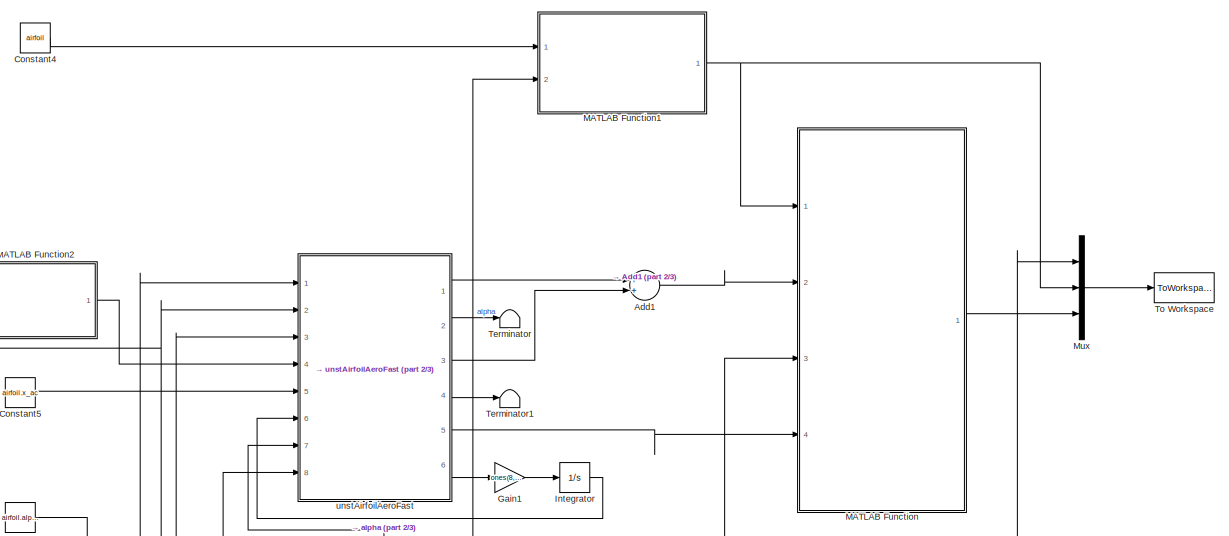
[diagram: root canvas - part 1/3, middle right region]
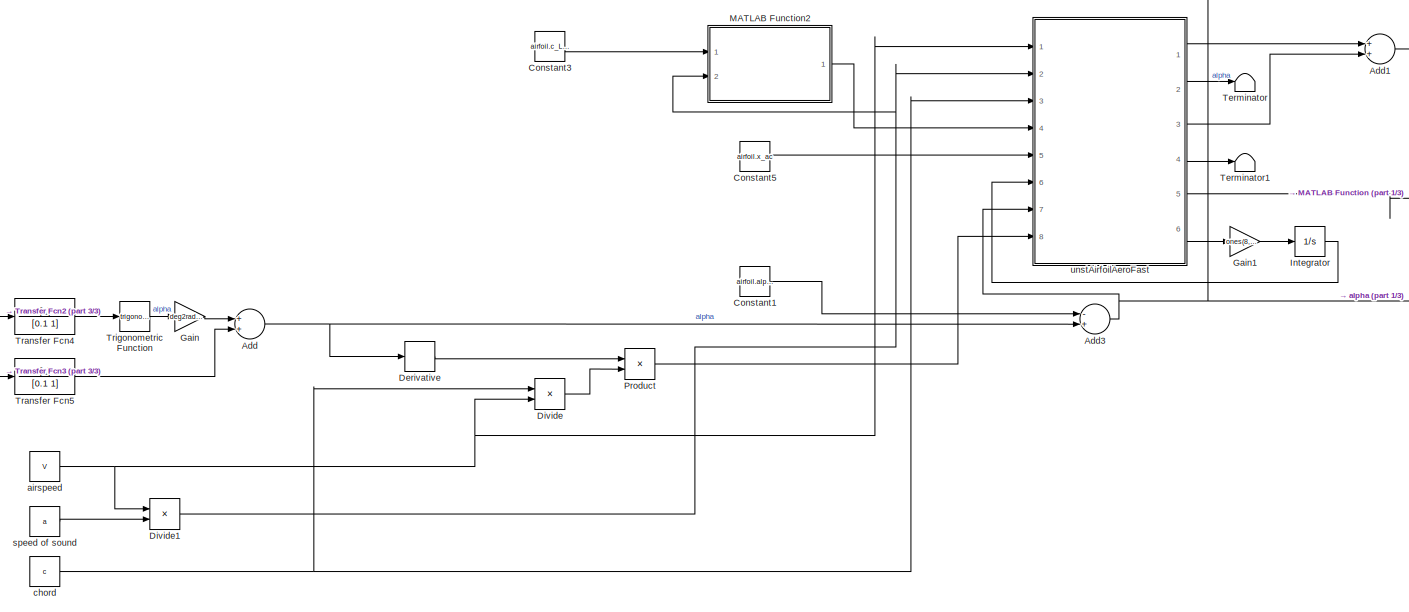
[diagram: root canvas - part 2/3, central region]
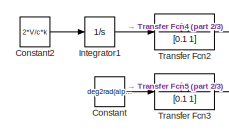
[diagram: root canvas - part 3/3, bottom left region]
MODEL slx_17e9f3751fa2
KIND model
CONFIG AbsTol = auto
CONFIG EnableMultiTasking = off
CONFIG FixedStep = 0.002
CONFIG MaxStep = auto
CONFIG MinStep = auto
CONFIG RelTol = 1e-3
CONFIG SampleTimeConstraint = Unconstrained
CONFIG Solver = FixedStepAuto
CONFIG SolverName = FixedStepAuto
CONFIG StartTime = 0.0
CONFIG StopTime = t_sim
BLOCK [Sum] Add
  InputSameDT = off
  OutDataTypeStr = Inherit: Inherit via internal rule
  Ports = [2, 1]
  SaturateOnIntegerOverflow = off
BLOCK [Sum] Add1
  InputSameDT = off
  OutDataTypeStr = Inherit: Inherit via internal rule
  Ports = [2, 1]
  SaturateOnIntegerOverflow = off
BLOCK [Sum] Add3
  InputSameDT = off
  Inputs = -+
  OutDataTypeStr = Inherit: Inherit via internal rule
  Ports = [2, 1]
  SaturateOnIntegerOverflow = off
BLOCK [Constant] Constant
  Value = deg2rad(alpha_0)
BLOCK [Constant] Constant1
  Value = airfoil.alpha_0
BLOCK [Constant] Constant2
  Value = 2*V/c*k
BLOCK [Constant] Constant3
  Value = airfoil.c_L_alpha
BLOCK [Constant] Constant4
  OutDataTypeStr = Bus: airfoil_bus
  Value = airfoil
BLOCK [Constant] Constant5
  Value = airfoil.x_ac
BLOCK [Derivative] Derivative
BLOCK [Product] Divide
  InputSameDT = off
  Inputs = */
  OutDataTypeStr = Inherit: Inherit via internal rule
  Ports = [2, 1]
  RndMeth = Floor
  SaturateOnIntegerOverflow = off
BLOCK [Product] Divide1
  InputSameDT = off
  Inputs = */
  OutDataTypeStr = Inherit: Inherit via internal rule
  Ports = [2, 1]
  RndMeth = Floor
  SaturateOnIntegerOverflow = off
BLOCK [Gain] Gain
  Gain = deg2rad(Delta_alpha)
  OutDataTypeStr = Inherit: Inherit via internal rule
  ParamDataTypeStr = Inherit: Inherit via internal rule
  SaturateOnIntegerOverflow = off
BLOCK [Gain] Gain1
  Gain = ones(8,1)
  OutDataTypeStr = Inherit: Inherit via internal rule
  ParamDataTypeStr = Inherit: Inherit via internal rule
  SaturateOnIntegerOverflow = off
BLOCK [Integrator] Integrator
  Ports = [1, 1]
BLOCK [Integrator] Integrator1
  Ports = [1, 1]
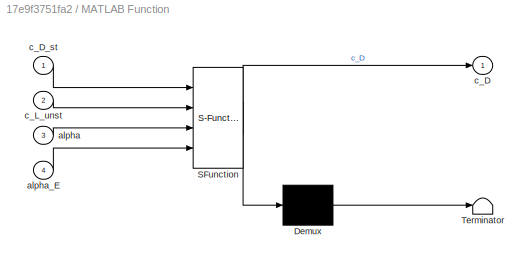
BLOCK [SubSystem] MATLAB Function
  ErrorFcn = Stateflow.Translate.translate
  PermitHierarchicalResolution = ExplicitOnly
  Ports = [4, 1]
  RequestExecContextInheritance = off
  SFBlockType = MATLAB Function
  TreatAsAtomicUnit = on
BLOCK [Demux] MATLAB Function/ Demux 
  Outputs = 1
  Ports = [1, 1]
BLOCK [S-Function] MATLAB Function/ SFunction 
  EnableBusSupport = on
  FunctionName = sf_sfun
  PortCounts = [4 2]
  Ports = [4, 2]
  SFcnIsStateOwnerBlock = off
  SFunctionDeploymentMode = off
  Tag = Stateflow S-Function unstAirfoilAero_sim_example_drag 2
BLOCK [Terminator] MATLAB Function/ Terminator 
BLOCK [Inport] MATLAB Function/alpha
  IconDisplay = Port number
  Port = 3
BLOCK [Inport] MATLAB Function/alpha_E
  IconDisplay = Port number
  Port = 4
BLOCK [Outport] MATLAB Function/c_D
  IconDisplay = Port number
BLOCK [Inport] MATLAB Function/c_D_st
  IconDisplay = Port number
BLOCK [Inport] MATLAB Function/c_L_unst
  IconDisplay = Port number
  Port = 2
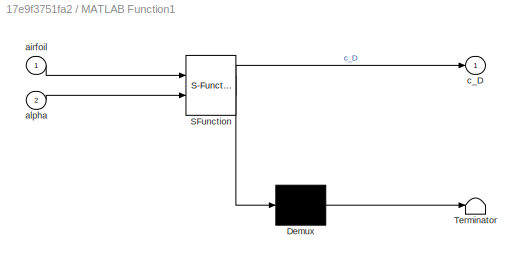
BLOCK [SubSystem] MATLAB Function1
  ErrorFcn = Stateflow.Translate.translate
  PermitHierarchicalResolution = ExplicitOnly
  Ports = [2, 1]
  RequestExecContextInheritance = off
  SFBlockType = MATLAB Function
  TreatAsAtomicUnit = on
BLOCK [Demux] MATLAB Function1/ Demux 
  Outputs = 1
  Ports = [1, 1]
BLOCK [S-Function] MATLAB Function1/ SFunction 
  EnableBusSupport = on
  FunctionName = sf_sfun
  PortCounts = [2 2]
  Ports = [2, 2]
  SFcnIsStateOwnerBlock = off
  SFunctionDeploymentMode = off
  Tag = Stateflow S-Function unstAirfoilAero_sim_example_drag 1
BLOCK [Terminator] MATLAB Function1/ Terminator 
BLOCK [Inport] MATLAB Function1/airfoil
  IconDisplay = Port number
BLOCK [Inport] MATLAB Function1/alpha
  IconDisplay = Port number
  Port = 2
BLOCK [Outport] MATLAB Function1/c_D
  IconDisplay = Port number
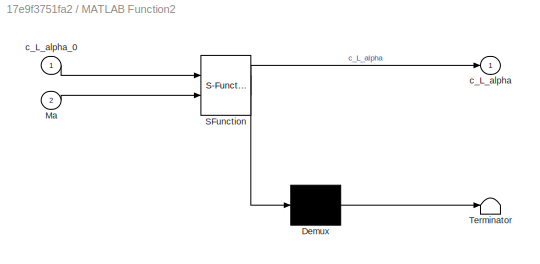
BLOCK [SubSystem] MATLAB Function2
  ErrorFcn = Stateflow.Translate.translate
  PermitHierarchicalResolution = ExplicitOnly
  Ports = [2, 1]
  RequestExecContextInheritance = off
  SFBlockType = MATLAB Function
  TreatAsAtomicUnit = on
BLOCK [Demux] MATLAB Function2/ Demux 
  Outputs = 1
  Ports = [1, 1]
BLOCK [S-Function] MATLAB Function2/ SFunction 
  EnableBusSupport = on
  FunctionName = sf_sfun
  PortCounts = [2 2]
  Ports = [2, 2]
  SFcnIsStateOwnerBlock = off
  SFunctionDeploymentMode = off
  Tag = Stateflow S-Function unstAirfoilAero_sim_example_drag 3
BLOCK [Terminator] MATLAB Function2/ Terminator 
BLOCK [Inport] MATLAB Function2/Ma
  IconDisplay = Port number
  Port = 2
BLOCK [Outport] MATLAB Function2/c_L_alpha
  IconDisplay = Port number
BLOCK [Inport] MATLAB Function2/c_L_alpha_0
  IconDisplay = Port number
BLOCK [Mux] Mux
  DisplayOption = bar
  Inputs = 3
  Ports = [3, 1]
BLOCK [Product] Product
  InputSameDT = off
  OutDataTypeStr = Inherit: Inherit via internal rule
  Ports = [2, 1]
  RndMeth = Floor
  SaturateOnIntegerOverflow = off
BLOCK [Terminator] Terminator
BLOCK [Terminator] Terminator1
BLOCK [ToWorkspace] To Workspace
  FixptAsFi = on
  MaxDataPoints = inf
  Ports = [1]
  SampleTime = -1
  Save2DSignal = 3-D array (concatenate along third dimension)
  SaveFormat = Timeseries
  VariableName = simout
BLOCK [TransferFcn] Transfer Fcn2
  Denominator = [0.1 1]
BLOCK [TransferFcn] Transfer Fcn3
  Denominator = [0.1 1]
BLOCK [TransferFcn] Transfer Fcn4
  Denominator = [0.1 1]
BLOCK [TransferFcn] Transfer Fcn5
  Denominator = [0.1 1]
BLOCK [Trigonometry] Trigonometric Function
  Ports = [1, 1]
BLOCK [Constant] airspeed
  Value = V
BLOCK [Constant] chord
  Value = c
BLOCK [Constant] speed of sound
  Value = a
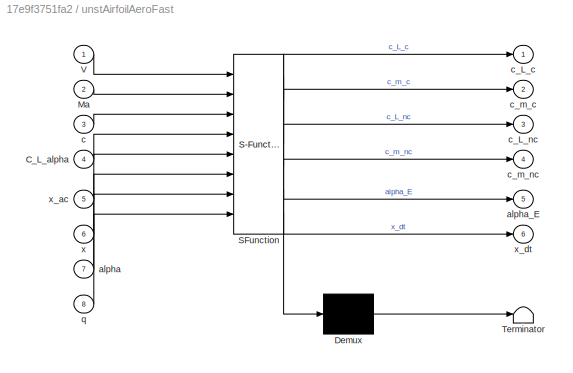
BLOCK [SubSystem] unstAirfoilAeroFast
  ErrorFcn = Stateflow.Translate.translate
  PermitHierarchicalResolution = ExplicitOnly
  Ports = [8, 6]
  RequestExecContextInheritance = off
  SFBlockType = MATLAB Function
  TreatAsAtomicUnit = on
BLOCK [Demux] unstAirfoilAeroFast/ Demux 
  Outputs = 1
  Ports = [1, 1]
BLOCK [S-Function] unstAirfoilAeroFast/ SFunction 
  EnableBusSupport = on
  FunctionName = sf_sfun
  PortCounts = [8 7]
  Ports = [8, 7]
  SFcnIsStateOwnerBlock = off
  SFunctionDeploymentMode = off
  Tag = Stateflow S-Function unstAirfoilAero_sim_example_drag 12
BLOCK [Terminator] unstAirfoilAeroFast/ Terminator 
BLOCK [Inport] unstAirfoilAeroFast/C_L_alpha
  IconDisplay = Port number
  Port = 4
BLOCK [Inport] unstAirfoilAeroFast/Ma
  IconDisplay = Port number
  Port = 2
BLOCK [Inport] unstAirfoilAeroFast/V
  IconDisplay = Port number
BLOCK [Inport] unstAirfoilAeroFast/alpha
  IconDisplay = Port number
  Port = 7
BLOCK [Outport] unstAirfoilAeroFast/alpha_E
  IconDisplay = Port number
  Port = 5
BLOCK [Inport] unstAirfoilAeroFast/c
  IconDisplay = Port number
  Port = 3
BLOCK [Outport] unstAirfoilAeroFast/c_L_c
  IconDisplay = Port number
BLOCK [Outport] unstAirfoilAeroFast/c_L_nc
  IconDisplay = Port number
  Port = 3
BLOCK [Outport] unstAirfoilAeroFast/c_m_c
  IconDisplay = Port number
  Port = 2
BLOCK [Outport] unstAirfoilAeroFast/c_m_nc
  IconDisplay = Port number
  Port = 4
BLOCK [Inport] unstAirfoilAeroFast/q
  IconDisplay = Port number
  Port = 8
BLOCK [Inport] unstAirfoilAeroFast/x
  IconDisplay = Port number
  Port = 6
BLOCK [Inport] unstAirfoilAeroFast/x_ac
  IconDisplay = Port number
  Port = 5
BLOCK [Outport] unstAirfoilAeroFast/x_dt
  IconDisplay = Port number
  Port = 6
LINE Add1:1 -> MATLAB Function:2
NET Add3:1 -> MATLAB Function1:2, MATLAB Function:3, Mux:1, unstAirfoilAeroFast:7
NET Add:1 -> Add3:2, Derivative:1
LINE Constant1:1 -> Add3:1
LINE Constant2:1 -> Integrator1:1
LINE Constant3:1 -> MATLAB Function2:1
LINE Constant4:1 -> MATLAB Function1:1
LINE Constant5:1 -> unstAirfoilAeroFast:5
LINE Constant:1 -> Transfer Fcn3:1
LINE Derivative:1 -> Product:1
NET Divide1:1 -> MATLAB Function2:2, unstAirfoilAeroFast:2
LINE Divide:1 -> Product:2
LINE Gain1:1 -> Integrator:1
LINE Gain:1 -> Add:1
LINE Integrator1:1 -> Transfer Fcn2:1
LINE Integrator:1 -> unstAirfoilAeroFast:6
NET MATLAB Function1:1 -> MATLAB Function:1, Mux:2
LINE MATLAB Function2:1 -> unstAirfoilAeroFast:4
LINE MATLAB Function:1 -> Mux:3
LINE Mux:1 -> To Workspace:1
LINE Product:1 -> unstAirfoilAeroFast:8
LINE Transfer Fcn2:1 -> Transfer Fcn4:1
LINE Transfer Fcn3:1 -> Transfer Fcn5:1
LINE Transfer Fcn4:1 -> Trigonometric Function:1
LINE Transfer Fcn5:1 -> Add:2
LINE Trigonometric Function:1 -> Gain:1
NET airspeed:1 -> Divide1:1, Divide:2, unstAirfoilAeroFast:1
NET chord:1 -> Divide:1, unstAirfoilAeroFast:3
LINE speed of sound:1 -> Divide1:2
LINE unstAirfoilAeroFast:1 -> Add1:1
LINE unstAirfoilAeroFast:2 -> Terminator:1
LINE unstAirfoilAeroFast:3 -> Add1:2
LINE unstAirfoilAeroFast:4 -> Terminator1:1
LINE unstAirfoilAeroFast:5 -> MATLAB Function:4
LINE unstAirfoilAeroFast:6 -> Gain1:1
note: NET lines group one-source signal fan-out (src -> all destinations, sorted); 1:1 wires keep LINE
CHART MATLAB Function1 states=1 transitions=1
  STATE_LABEL 'eML_blk_kernel()'
  STATE_LABEL 'SCRIPT:\nfunction c_D = airfoilAnalyticSimpleCd( airfoil, alpha )\nc_D = airfoilAnalyticSimpleCd( airfoil, alpha );\nend'
CHART MATLAB Function states=1 transitions=1
  STATE_LABEL 'eML_blk_kernel()'
  STATE_LABEL 'SCRIPT:\nfunction c_D = unstAirfoilAeroCd( c_D_st, c_L_unst, alpha, alpha_E )\nc_D = unstAirfoilAeroCd( c_D_st, c_L_unst, alpha, alpha_E );\nend\n'
CHART MATLAB Function2 states=1 transitions=1
  STATE_LABEL 'eML_blk_kernel()'
  STATE_LABEL 'SCRIPT:\nfunction c_L_alpha = fcn(c_L_alpha_0,Ma)\n\nc_L_alpha = c_L_alpha_0 * 1/sqrt(1-Ma^2);\n\nend\n'
CHART unstAirfoilAeroFast states=1 transitions=1
  STATE_LABEL 'eML_blk_kernel()'
  STATE_LABEL 'SCRIPT:\nfunction [c_L_c,c_m_c,c_L_nc,c_m_nc,alpha_E,x_dt] = unstAirfoilAeroFast( ...\n    V, Ma, c, C_L_alpha, x_ac, x, alpha, q ) %#codegen\n[c_L_c,c_m_c,c_L_nc,c_m_nc,alpha_E,x_dt] = unstAirfoilAeroFast( ...\n    V, Ma, c, C_L_alpha, x_ac, x, alpha, q );\nend'
